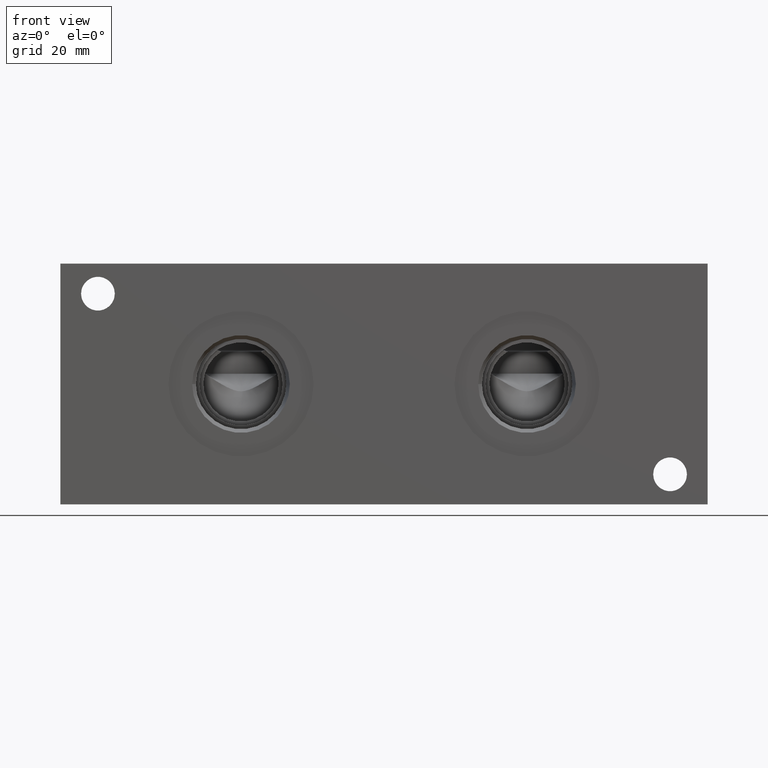
[diagram: clean part render]
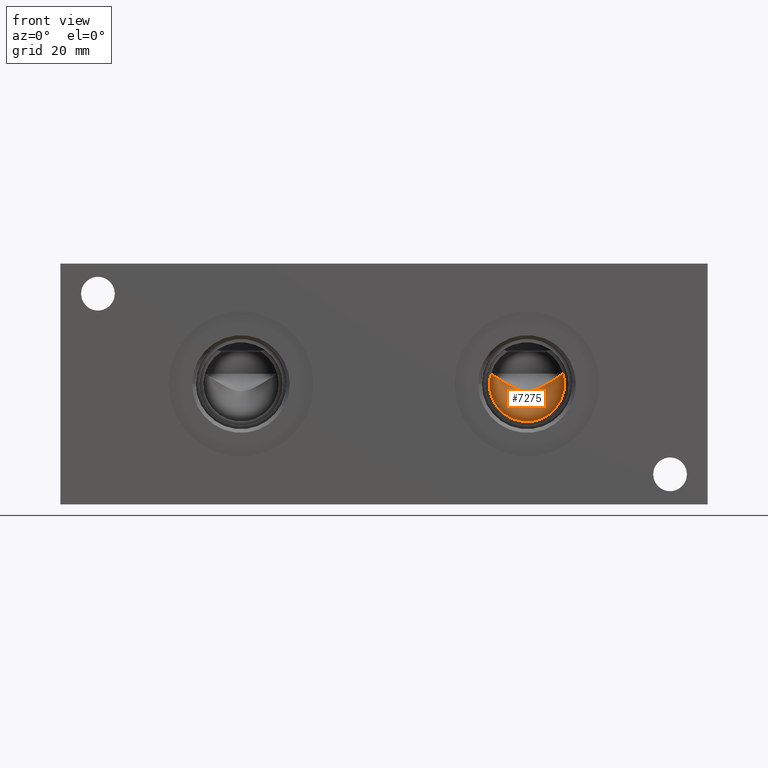
[diagram: same view with one face highlighted and labeled with its STEP entity id]
A machine part, front view. The second image highlights one B-rep face of the part: STEP entity #7275.
In plain terms, the highlighted conical surface has half-angle 60 deg.
Its self-contained STEP definition (entity closure, byte-faithful):
#31=CONICAL_SURFACE('',#7561,3.96875,1.0471975511966);
#93=CIRCLE('',#7562,7.9375);
#734=FACE_OUTER_BOUND('',#1143,.T.);
#1143=EDGE_LOOP('',(#6251,#6252));
#2773=B_SPLINE_CURVE_WITH_KNOTS('',3,(#12493,#12494,#12495,#12496,#12497,
#12498,#12499,#12500,#12501,#12502,#12503,#12504,#12505,#12506,#12507,#12508,
#12509,#12510,#12511,#12512,#12513,#12514,#12515,#12516,#12517,#12518),
 .UNSPECIFIED.,.F.,.F.,(4,2,2,2,2,2,2,2,2,2,2,2,4),(1.88694444293113,2.04441131442569,
2.33647007362936,2.51027472530855,2.68407937698775,2.75437098202837,2.824662587069,
2.92085619940028,3.01704981173155,3.17824827198426,3.33944673223698,3.6618436527424,
3.69750263973941),.UNSPECIFIED.);
#3384=VERTEX_POINT('',#12491);
#3385=VERTEX_POINT('',#12492);
#4354=EDGE_CURVE('',#3384,#3385,#2773,.T.);
#4359=EDGE_CURVE('',#3385,#3384,#93,.T.);
#6251=ORIENTED_EDGE('',*,*,#4354,.T.);
#6252=ORIENTED_EDGE('',*,*,#4359,.T.);
#7275=ADVANCED_FACE('',(#734),#31,.F.);
#7561=AXIS2_PLACEMENT_3D('',#12526,#8751,#8752);
#7562=AXIS2_PLACEMENT_3D('',#12527,#8753,#8754);
#8751=DIRECTION('center_axis',(0.,-1.,0.));
#8752=DIRECTION('ref_axis',(6.12323399573676E-17,0.,-1.));
#8753=DIRECTION('center_axis',(0.,-1.,0.));
#8754=DIRECTION('ref_axis',(1.,0.,0.));
#12491=CARTESIAN_POINT('',(106.058100872096,23.22292,27.57708));
#12492=CARTESIAN_POINT('',(90.7918991279035,23.22292,27.57708));
#12493=CARTESIAN_POINT('Ctrl Pts',(106.058100872096,23.22292,27.57708));
#12494=CARTESIAN_POINT('Ctrl Pts',(105.651459411293,23.4911695575489,27.3088304424511));
#12495=CARTESIAN_POINT('Ctrl Pts',(105.246090351764,23.7558655346481,27.0441344653519));
#12496=CARTESIAN_POINT('Ctrl Pts',(104.091425093664,24.4978569491117,26.3021430508883));
#12497=CARTESIAN_POINT('Ctrl Pts',(103.345779301531,24.9646245073309,25.8353754926691));
#12498=CARTESIAN_POINT('Ctrl Pts',(102.142925146893,25.6590926773069,25.1409073226931));
#12499=CARTESIAN_POINT('Ctrl Pts',(101.641196167165,25.9363593628867,24.8636406371133));
#12500=CARTESIAN_POINT('Ctrl Pts',(100.595266744574,26.4353550354191,24.3646449645809));
#12501=CARTESIAN_POINT('Ctrl Pts',(100.050908666589,26.6569187954122,24.1430812045878));
#12502=CARTESIAN_POINT('Ctrl Pts',(99.2814129576978,26.8438806810764,23.9561193189236));
#12503=CARTESIAN_POINT('Ctrl Pts',(99.0320829678983,26.8887652002958,23.9112347997042));
#12504=CARTESIAN_POINT('Ctrl Pts',(98.5264483107705,26.9314484996474,23.8685515003526));
#12505=CARTESIAN_POINT('Ctrl Pts',(98.2700351588991,26.928602243859,23.871397756141));
#12506=CARTESIAN_POINT('Ctrl Pts',(97.7197386675392,26.8778869685412,23.9221130314588));
#12507=CARTESIAN_POINT('Ctrl Pts',(97.3846774497254,26.8087189130068,23.9912810869932));
#12508=CARTESIAN_POINT('Ctrl Pts',(96.741474566551,26.617883593849,24.182116406151));
#12509=CARTESIAN_POINT('Ctrl Pts',(96.4322637133486,26.4980231835263,24.3019768164737));
#12510=CARTESIAN_POINT('Ctrl Pts',(95.6997213360191,26.1821906952551,24.6178093047449));
#12511=CARTESIAN_POINT('Ctrl Pts',(95.2640605179643,25.9590118989564,24.8409881010435));
#12512=CARTESIAN_POINT('Ctrl Pts',(94.4068078378606,25.4904631714412,25.3095368285588));
#12513=CARTESIAN_POINT('Ctrl Pts',(93.9860717056545,25.2443109441729,25.5556890558271));
#12514=CARTESIAN_POINT('Ctrl Pts',(92.7300500714036,24.4849339468637,26.3150660531363));
#12515=CARTESIAN_POINT('Ctrl Pts',(91.9011325164627,23.9514944677292,26.8485055322708));
#12516=CARTESIAN_POINT('Ctrl Pts',(90.9761907226427,23.34434984249,27.45565015751));
#12517=CARTESIAN_POINT('Ctrl Pts',(90.8840568087071,23.2837137445716,27.5162862554284));
#12518=CARTESIAN_POINT('Ctrl Pts',(90.7918991279035,23.22292,27.57708));
#12526=CARTESIAN_POINT('Origin',(98.425,25.5142788808463,25.4));
#12527=CARTESIAN_POINT('Origin',(98.425,23.22292,25.4));